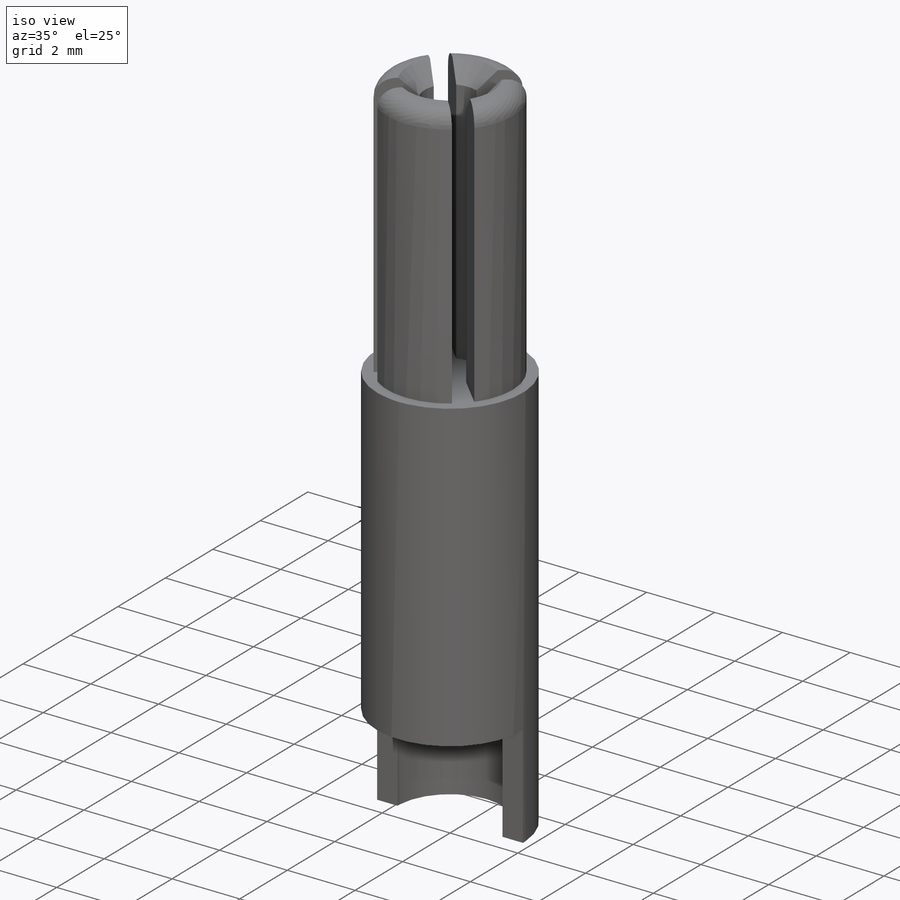
[diagram: iso view]
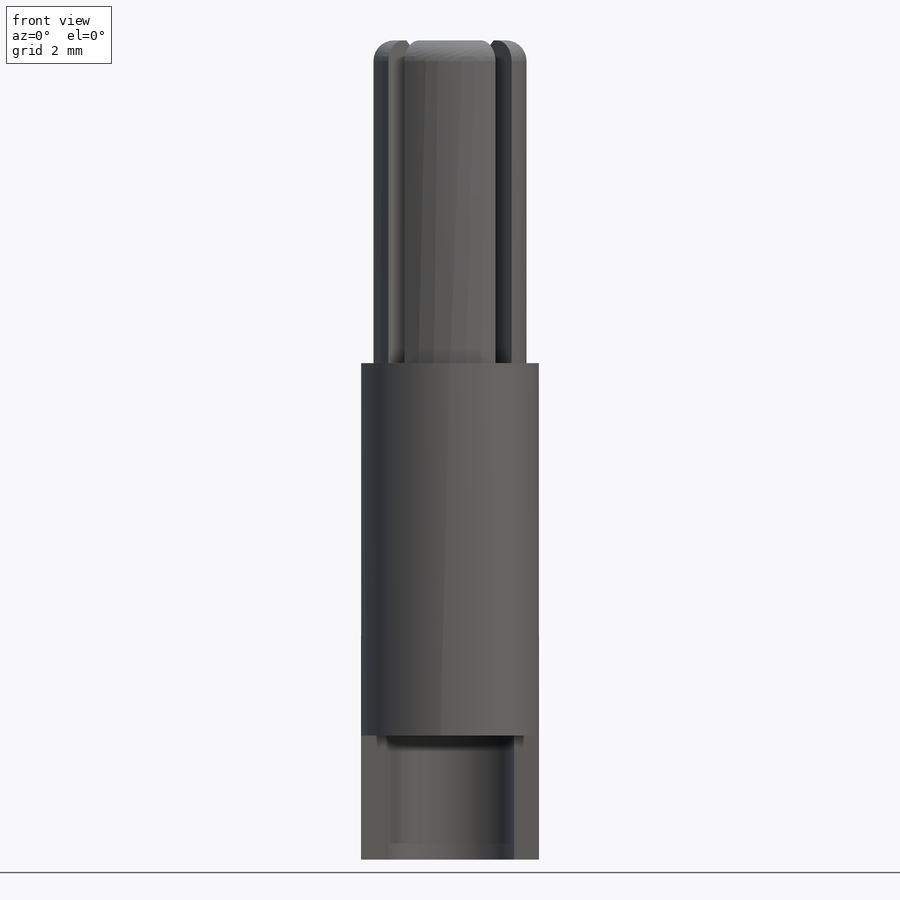
[diagram: front view]
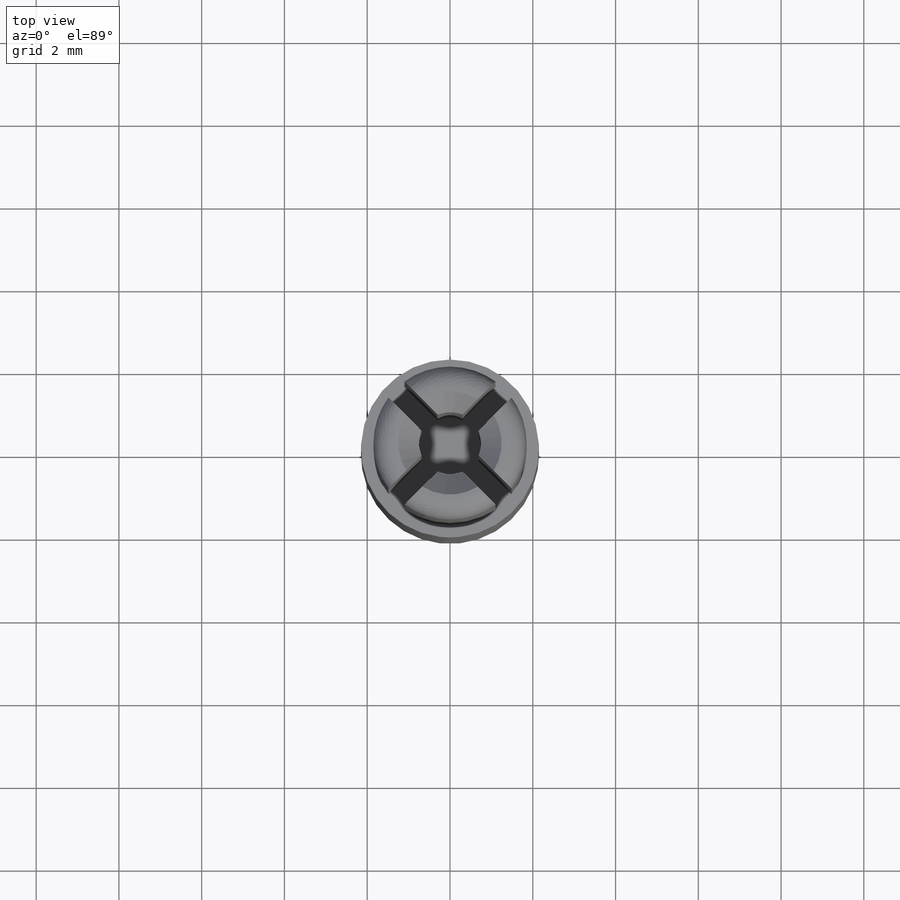
[diagram: top view]
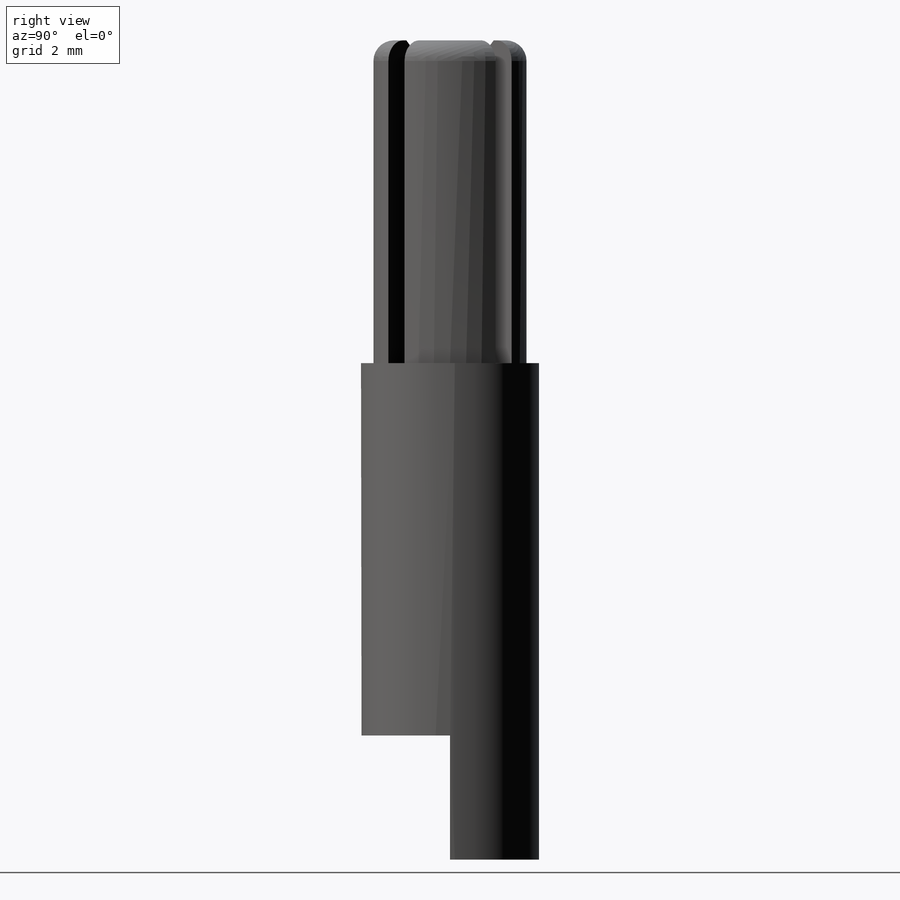
[diagram: right view]
SOLIDWORKS PART (.sldprt)
format: sldprt  version: not decoded by parser v0  size: 241,152 bytes
history: native  units: mm
features: plane x3, sketch x3, cut_extrude x2, material x1, revolve x1, chamfer x1, fillet x1 (+9 scaffold rows collapsed)
feature tree (21):
  scaffold x9  (default folders/planes/origin — collapsed)
  material  "Copper"
  plane  "Plano frontal"
  plane  "Plano superior"
  plane  "Plano direito"
  sketch  "Esboço1"  dims[D1=19.8mm D2=2.15mm D3=0.6mm D4=10.0mm D5=2.5mm D6=0.6mm]
  revolve  "Revolução1"  Angle=360deg
  sketch  "Esboço2"  dims[c1.D1=3.7mm c1.D4=4.3mm c1.D3=2.0mm c2.D4=~1.16917mm c2.D3=0.55mm c3.D4=~2.19832mm c3.D2=1.1mm]
  cut_extrude  "Corte-extrusão3"  Depth=7.8mm
  sketch  "Esboço3"  dims[D1=~3.467444mm D2=~6.992583mm]
  cut_extrude  "Corte-extrusão4"  Depth=3mm Diâmetro=5mm Largura=0 Profundidade=0 ComprimentoAdaptador=0mm
  chamfer  "Chanfro1"  Distance=0.5mm Angle=45deg
  fillet  "Filete1"  Radius=0.5mm
decode coverage: 8 of 8 modeling features carry decoded parameters
note: ~ marks probable driven/reference dimensions
note: suppression state not decoded; provenance and decode notes live in map.json
